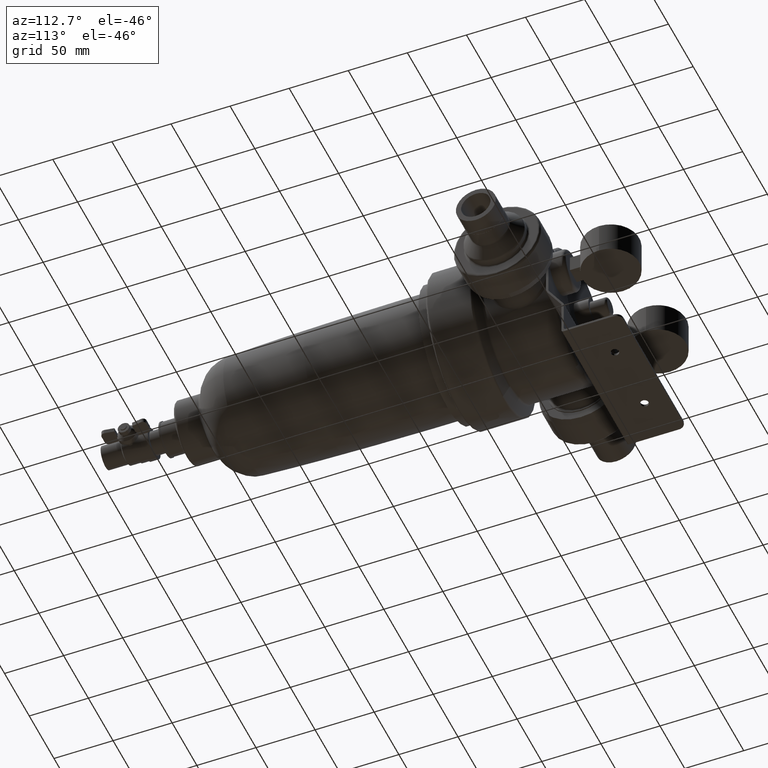
[diagram: clean part render]
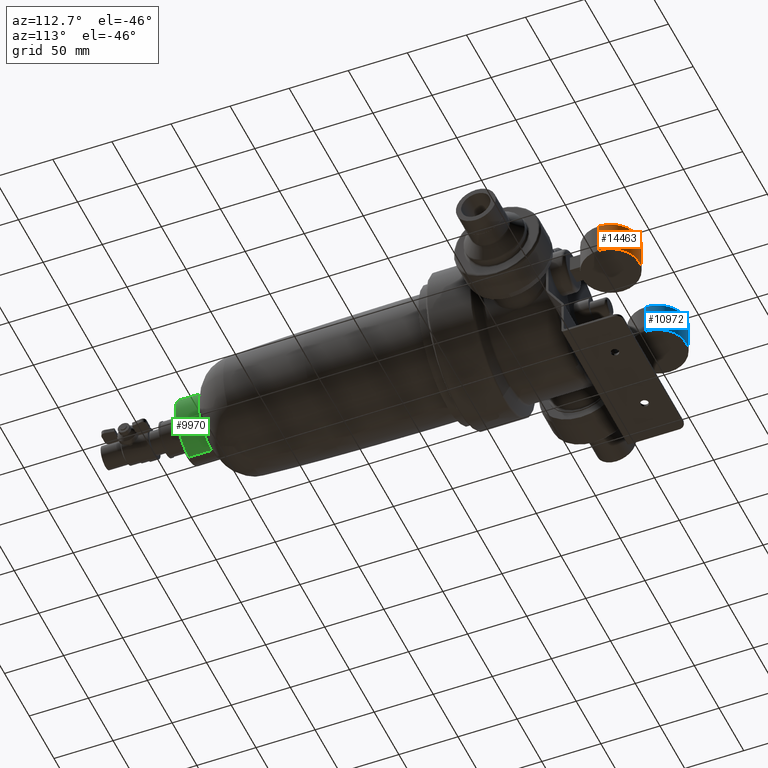
[diagram: same view with three faces highlighted in distinct colors, each labeled with its STEP entity id]
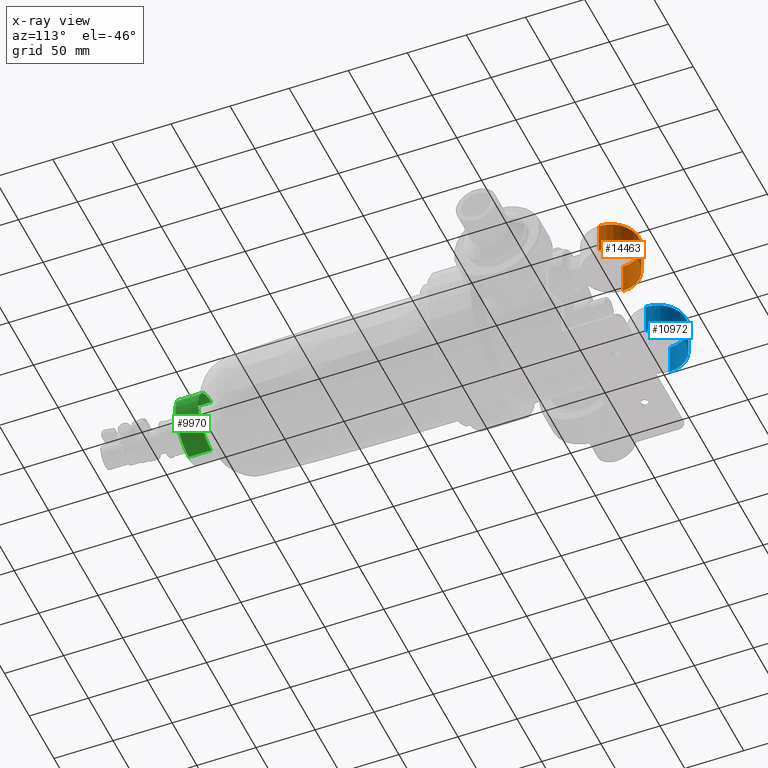
[diagram: x-ray of the same camera — body ghosted, the three highlighted faces saturated]
A machine part, auxiliary view with three faces highlighted in distinct colors.
The next image is the same camera in x-ray (body ghosted, the three faces saturated) — at least one of them is partly hidden behind the body in this view.
Their STEP definitions:

[orange] entity #14463 — the highlighted cylindrical surface (edge-blend (fillet) strip) has radius 24 mm, axis along (-0, -0, -1).
#19 = EDGE_CURVE ( 'NONE', #10385, #2386, #217, .T. ) ;
#217 = CIRCLE ( 'NONE', #307, 24.00000000000000355 ) ;
#307 = AXIS2_PLACEMENT_3D ( 'NONE', #3174, #11036, #9909 ) ;
#999 = DIRECTION ( 'NONE',  ( -0.0000000000000000000, -0.0000000000000000000, -1.000000000000000000 ) ) ;
#1365 = CARTESIAN_POINT ( 'NONE',  ( 23.50000000000001776, 74.75000000000000000, -13.62500000000000000 ) ) ;
#1574 = EDGE_CURVE ( 'NONE', #2386, #2365, #2166, .T. ) ;
#2110 = VERTEX_POINT ( 'NONE', #1365 ) ;
#2166 = LINE ( 'NONE', #3440, #10800 ) ;
#2306 = ORIENTED_EDGE ( 'NONE', *, *, #19, .T. ) ;
#2365 = VERTEX_POINT ( 'NONE', #5496 ) ;
#2386 = VERTEX_POINT ( 'NONE', #8896 ) ;
#2785 = VECTOR ( 'NONE', #999, 1000.000000000000000 ) ;
#3174 = CARTESIAN_POINT ( 'NONE',  ( 47.50000000000002132, 74.75000000000000000, 13.62500000000000000 ) ) ;
#3440 = CARTESIAN_POINT ( 'NONE',  ( 71.50000000000002842, 74.75000000000000000, 13.62500000000000000 ) ) ;
#4463 = CARTESIAN_POINT ( 'NONE',  ( 23.50000000000001776, 74.75000000000000000, 13.62500000000000000 ) ) ;
#4466 = CIRCLE ( 'NONE', #14043, 24.00000000000000355 ) ;
#4568 = EDGE_LOOP ( 'NONE', ( #2306, #11111, #11512, #10647 ) ) ;
#5061 = CYLINDRICAL_SURFACE ( 'NONE', #7068, 24.00000000000000355 ) ;
#5264 = CARTESIAN_POINT ( 'NONE',  ( 47.50000000000002132, 74.75000000000000000, -13.62500000000000000 ) ) ;
#5496 = CARTESIAN_POINT ( 'NONE',  ( 71.50000000000004263, 74.75000000000000000, -13.62500000000000000 ) ) ;
#5687 = DIRECTION ( 'NONE',  ( -0.0000000000000000000, -0.0000000000000000000, -1.000000000000000000 ) ) ;
#5743 = LINE ( 'NONE', #7702, #2785 ) ;
#6397 = DIRECTION ( 'NONE',  ( -1.000000000000000000, 0.0000000000000000000, 0.0000000000000000000 ) ) ;
#7068 = AXIS2_PLACEMENT_3D ( 'NONE', #14352, #8731, #14395 ) ;
#7702 = CARTESIAN_POINT ( 'NONE',  ( 23.50000000000001776, 74.75000000000000000, 13.62500000000000000 ) ) ;
#8731 = DIRECTION ( 'NONE',  ( -0.0000000000000000000, -0.0000000000000000000, -1.000000000000000000 ) ) ;
#8894 = EDGE_CURVE ( 'NONE', #10385, #2110, #5743, .T. ) ;
#8896 = CARTESIAN_POINT ( 'NONE',  ( 71.50000000000004263, 74.75000000000000000, 13.62500000000000000 ) ) ;
#9097 = FACE_OUTER_BOUND ( 'NONE', #4568, .T. ) ;
#9909 = DIRECTION ( 'NONE',  ( -1.000000000000000000, 0.0000000000000000000, 0.0000000000000000000 ) ) ;
#10385 = VERTEX_POINT ( 'NONE', #4463 ) ;
#10647 = ORIENTED_EDGE ( 'NONE', *, *, #8894, .F. ) ;
#10800 = VECTOR ( 'NONE', #5687, 1000.000000000000000 ) ;
#11036 = DIRECTION ( 'NONE',  ( -0.0000000000000000000, -0.0000000000000000000, -1.000000000000000000 ) ) ;
#11111 = ORIENTED_EDGE ( 'NONE', *, *, #1574, .T. ) ;
#11512 = ORIENTED_EDGE ( 'NONE', *, *, #11596, .F. ) ;
#11596 = EDGE_CURVE ( 'NONE', #2110, #2365, #4466, .T. ) ;
#13147 = DIRECTION ( 'NONE',  ( -0.0000000000000000000, -0.0000000000000000000, -1.000000000000000000 ) ) ;
#14043 = AXIS2_PLACEMENT_3D ( 'NONE', #5264, #13147, #6397 ) ;
#14352 = CARTESIAN_POINT ( 'NONE',  ( 47.50000000000002132, 74.75000000000000000, 13.62500000000000000 ) ) ;
#14395 = DIRECTION ( 'NONE',  ( -1.000000000000000000, 0.0000000000000000000, 0.0000000000000000000 ) ) ;
#14463 = ADVANCED_FACE ( 'NONE', ( #9097 ), #5061, .T. ) ;

[blue] entity #10972 — the highlighted cylindrical surface (edge-blend (fillet) strip) has radius 24 mm, axis along (-0, -0, -1).
#272 = CARTESIAN_POINT ( 'NONE',  ( -23.50000000000001776, 74.75000000000000000, 13.62500000000000000 ) ) ;
#945 = ORIENTED_EDGE ( 'NONE', *, *, #9768, .T. ) ;
#1548 = CIRCLE ( 'NONE', #5469, 24.00000000000000355 ) ;
#3002 = CARTESIAN_POINT ( 'NONE',  ( -71.50000000000004263, 74.75000000000000000, -13.62500000000000000 ) ) ;
#3984 = VERTEX_POINT ( 'NONE', #9239 ) ;
#4331 = CYLINDRICAL_SURFACE ( 'NONE', #5199, 24.00000000000000000 ) ;
#4405 = ORIENTED_EDGE ( 'NONE', *, *, #5546, .F. ) ;
#4627 = DIRECTION ( 'NONE',  ( 0.0000000000000000000, 0.0000000000000000000, 1.000000000000000000 ) ) ;
#5199 = AXIS2_PLACEMENT_3D ( 'NONE', #13889, #7149, #7204 ) ;
#5469 = AXIS2_PLACEMENT_3D ( 'NONE', #5864, #13739, #6991 ) ;
#5546 = EDGE_CURVE ( 'NONE', #10184, #7235, #7380, .T. ) ;
#5673 = ORIENTED_EDGE ( 'NONE', *, *, #9938, .F. ) ;
#5864 = CARTESIAN_POINT ( 'NONE',  ( -47.50000000000002132, 74.75000000000000000, -13.62500000000000000 ) ) ;
#6067 = VERTEX_POINT ( 'NONE', #9244 ) ;
#6244 = DIRECTION ( 'NONE',  ( -0.0000000000000000000, -0.0000000000000000000, -1.000000000000000000 ) ) ;
#6433 = EDGE_LOOP ( 'NONE', ( #5673, #945, #9644, #4405 ) ) ;
#6577 = AXIS2_PLACEMENT_3D ( 'NONE', #11400, #4627, #12528 ) ;
#6945 = DIRECTION ( 'NONE',  ( -0.0000000000000000000, -0.0000000000000000000, -1.000000000000000000 ) ) ;
#6991 = DIRECTION ( 'NONE',  ( 1.000000000000000000, 0.0000000000000000000, 0.0000000000000000000 ) ) ;
#7005 = VECTOR ( 'NONE', #6244, 1000.000000000000000 ) ;
#7149 = DIRECTION ( 'NONE',  ( -0.0000000000000000000, -0.0000000000000000000, -1.000000000000000000 ) ) ;
#7204 = DIRECTION ( 'NONE',  ( -1.000000000000000000, 0.0000000000000000000, 0.0000000000000000000 ) ) ;
#7235 = VERTEX_POINT ( 'NONE', #3002 ) ;
#7380 = LINE ( 'NONE', #11902, #7005 ) ;
#7587 = CARTESIAN_POINT ( 'NONE',  ( -71.50000000000004263, 74.75000000000000000, 13.62500000000000000 ) ) ;
#8195 = LINE ( 'NONE', #272, #11205 ) ;
#9239 = CARTESIAN_POINT ( 'NONE',  ( -23.50000000000001776, 74.75000000000000000, 13.62500000000000000 ) ) ;
#9244 = CARTESIAN_POINT ( 'NONE',  ( -23.50000000000001776, 74.75000000000000000, -13.62500000000000000 ) ) ;
#9644 = ORIENTED_EDGE ( 'NONE', *, *, #10859, .T. ) ;
#9768 = EDGE_CURVE ( 'NONE', #3984, #6067, #8195, .T. ) ;
#9938 = EDGE_CURVE ( 'NONE', #3984, #10184, #14211, .T. ) ;
#10184 = VERTEX_POINT ( 'NONE', #7587 ) ;
#10859 = EDGE_CURVE ( 'NONE', #6067, #7235, #1548, .T. ) ;
#10972 = ADVANCED_FACE ( 'NONE', ( #11385 ), #4331, .T. ) ;
#11205 = VECTOR ( 'NONE', #6945, 1000.000000000000000 ) ;
#11385 = FACE_OUTER_BOUND ( 'NONE', #6433, .T. ) ;
#11400 = CARTESIAN_POINT ( 'NONE',  ( -47.50000000000002132, 74.75000000000000000, 13.62500000000000000 ) ) ;
#11902 = CARTESIAN_POINT ( 'NONE',  ( -71.50000000000002842, 74.75000000000000000, 13.62500000000000000 ) ) ;
#12528 = DIRECTION ( 'NONE',  ( 1.000000000000000000, 0.0000000000000000000, 0.0000000000000000000 ) ) ;
#13739 = DIRECTION ( 'NONE',  ( 0.0000000000000000000, 0.0000000000000000000, 1.000000000000000000 ) ) ;
#13889 = CARTESIAN_POINT ( 'NONE',  ( -47.50000000000002132, 74.75000000000000000, 13.62500000000000000 ) ) ;
#14211 = CIRCLE ( 'NONE', #6577, 24.00000000000000355 ) ;

[green] entity #9970 — the highlighted cylindrical surface (edge-blend (fillet) strip) has radius 27 mm, axis along (-0, 1, -0).
#7 = CARTESIAN_POINT ( 'NONE',  ( 0.0000000000000000000, -283.1662800307755106, 0.0000000000000000000 ) ) ;
#295 = VERTEX_POINT ( 'NONE', #7377 ) ;
#447 = CARTESIAN_POINT ( 'NONE',  ( 0.0000000000000000000, -302.2499999999886313, 0.0000000000000000000 ) ) ;
#703 = VECTOR ( 'NONE', #10192, 1000.000000000000000 ) ;
#940 = CIRCLE ( 'NONE', #4742, 26.99999999999996447 ) ;
#1007 = LINE ( 'NONE', #13572, #703 ) ;
#1110 = DIRECTION ( 'NONE',  ( 0.0000000000000000000, 0.0000000000000000000, 1.000000000000000000 ) ) ;
#1542 = DIRECTION ( 'NONE',  ( 0.0000000000000000000, 0.0000000000000000000, -1.000000000000000000 ) ) ;
#1688 = ORIENTED_EDGE ( 'NONE', *, *, #1973, .T. ) ;
#1788 = CARTESIAN_POINT ( 'NONE',  ( 0.0000000000000000000, 0.0000000000000000000, 26.99999999999996447 ) ) ;
#1973 = EDGE_CURVE ( 'NONE', #12581, #295, #940, .T. ) ;
#2606 = CARTESIAN_POINT ( 'NONE',  ( 0.0000000000000000000, 0.0000000000000000000, 0.0000000000000000000 ) ) ;
#2656 = DIRECTION ( 'NONE',  ( 0.0000000000000000000, 0.0000000000000000000, 1.000000000000000000 ) ) ;
#3734 = DIRECTION ( 'NONE',  ( -0.0000000000000000000, 1.000000000000000000, -0.0000000000000000000 ) ) ;
#4495 = EDGE_CURVE ( 'NONE', #11995, #12581, #1007, .T. ) ;
#4552 = ORIENTED_EDGE ( 'NONE', *, *, #4745, .F. ) ;
#4742 = AXIS2_PLACEMENT_3D ( 'NONE', #7, #7805, #1110 ) ;
#4745 = EDGE_CURVE ( 'NONE', #6521, #295, #12095, .T. ) ;
#5163 = DIRECTION ( 'NONE',  ( -0.0000000000000000000, 1.000000000000000000, -0.0000000000000000000 ) ) ;
#5736 = CARTESIAN_POINT ( 'NONE',  ( 3.306546357697849395E-15, -302.2499999999886313, -26.99999999999996447 ) ) ;
#6021 = AXIS2_PLACEMENT_3D ( 'NONE', #447, #8251, #1542 ) ;
#6521 = VERTEX_POINT ( 'NONE', #10895 ) ;
#6605 = EDGE_LOOP ( 'NONE', ( #14037, #10038, #1688, #4552 ) ) ;
#7377 = CARTESIAN_POINT ( 'NONE',  ( 0.0000000000000000000, -283.1662800307755106, 26.99999999999996447 ) ) ;
#7805 = DIRECTION ( 'NONE',  ( 0.0000000000000000000, -1.000000000000000000, 0.0000000000000000000 ) ) ;
#8251 = DIRECTION ( 'NONE',  ( -0.0000000000000000000, 1.000000000000000000, -0.0000000000000000000 ) ) ;
#8556 = FACE_OUTER_BOUND ( 'NONE', #6605, .T. ) ;
#8726 = VECTOR ( 'NONE', #5163, 1000.000000000000000 ) ;
#9970 = ADVANCED_FACE ( 'NONE', ( #8556 ), #12781, .T. ) ;
#10038 = ORIENTED_EDGE ( 'NONE', *, *, #4495, .T. ) ;
#10192 = DIRECTION ( 'NONE',  ( -0.0000000000000000000, 1.000000000000000000, -0.0000000000000000000 ) ) ;
#10895 = CARTESIAN_POINT ( 'NONE',  ( 0.0000000000000000000, -302.2499999999886313, 26.99999999999996447 ) ) ;
#10936 = CIRCLE ( 'NONE', #6021, 26.99999999999996447 ) ;
#11951 = CARTESIAN_POINT ( 'NONE',  ( 3.306546357697849395E-15, -283.1662800307755106, -26.99999999999996447 ) ) ;
#11995 = VERTEX_POINT ( 'NONE', #5736 ) ;
#12095 = LINE ( 'NONE', #1788, #8726 ) ;
#12581 = VERTEX_POINT ( 'NONE', #11951 ) ;
#12781 = CYLINDRICAL_SURFACE ( 'NONE', #13371, 26.99999999999996447 ) ;
#13165 = EDGE_CURVE ( 'NONE', #6521, #11995, #10936, .T. ) ;
#13371 = AXIS2_PLACEMENT_3D ( 'NONE', #2606, #3734, #2656 ) ;
#13572 = CARTESIAN_POINT ( 'NONE',  ( 3.306546357697849395E-15, 0.0000000000000000000, -26.99999999999996447 ) ) ;
#14037 = ORIENTED_EDGE ( 'NONE', *, *, #13165, .T. ) ;